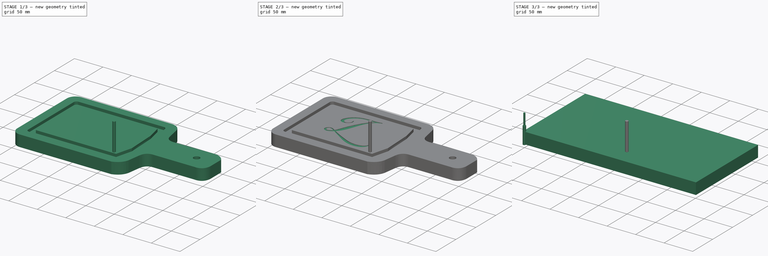
[diagram: build sequence overview — one tinted view per stage of 3, left to right]
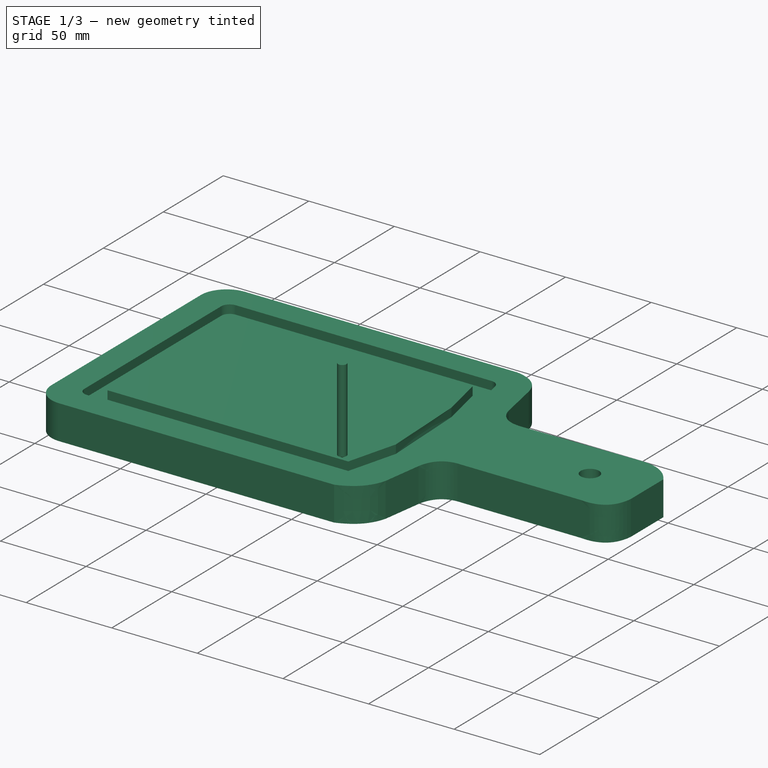
[diagram: stage 1 of 3 — iso view after this stage's code; geometry added in this stage tinted green]
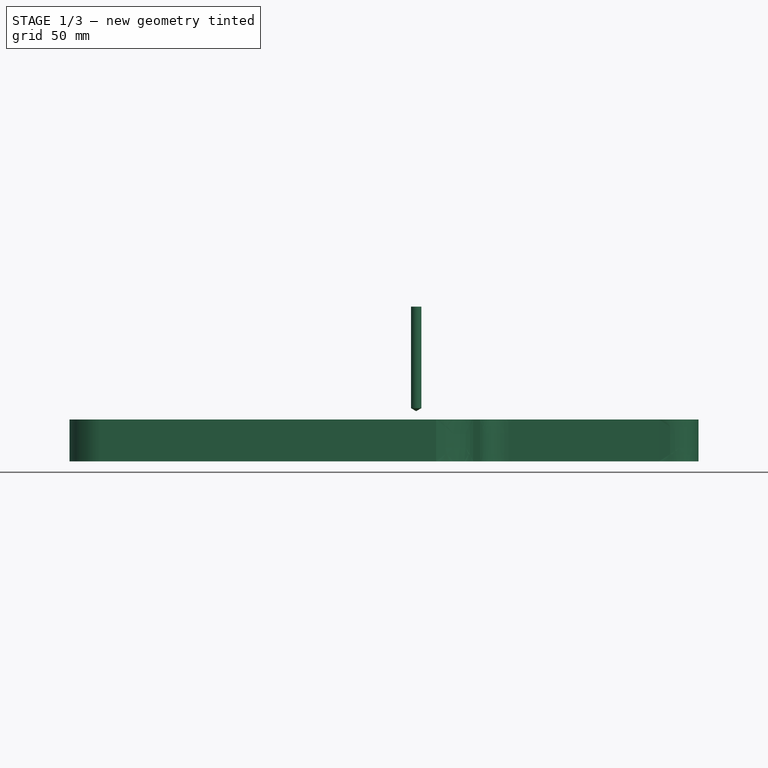
[diagram: stage 1 of 3 — front view after this stage's code; geometry added in this stage tinted green]
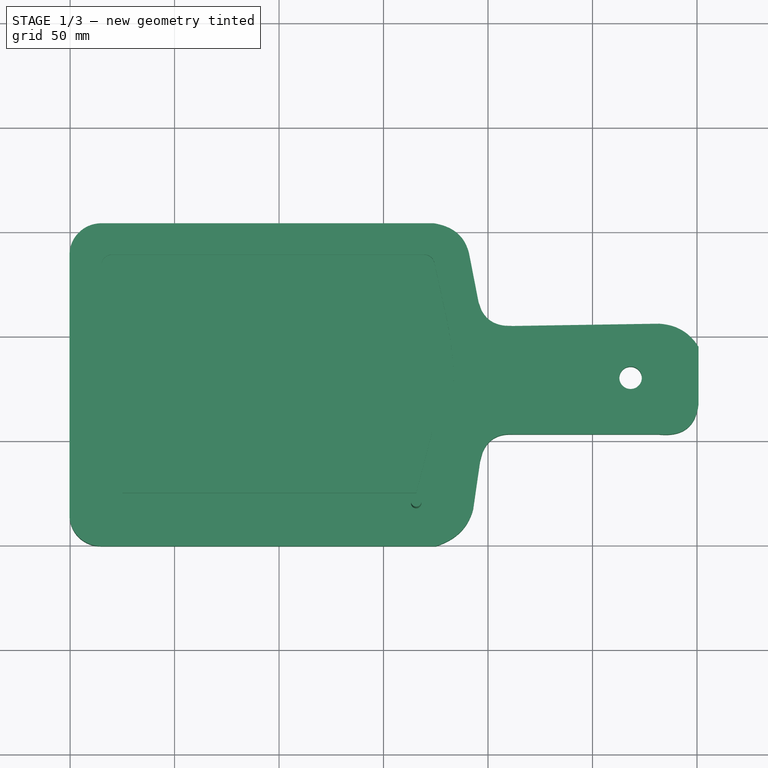
[diagram: stage 1 of 3 — top view after this stage's code; geometry added in this stage tinted green]
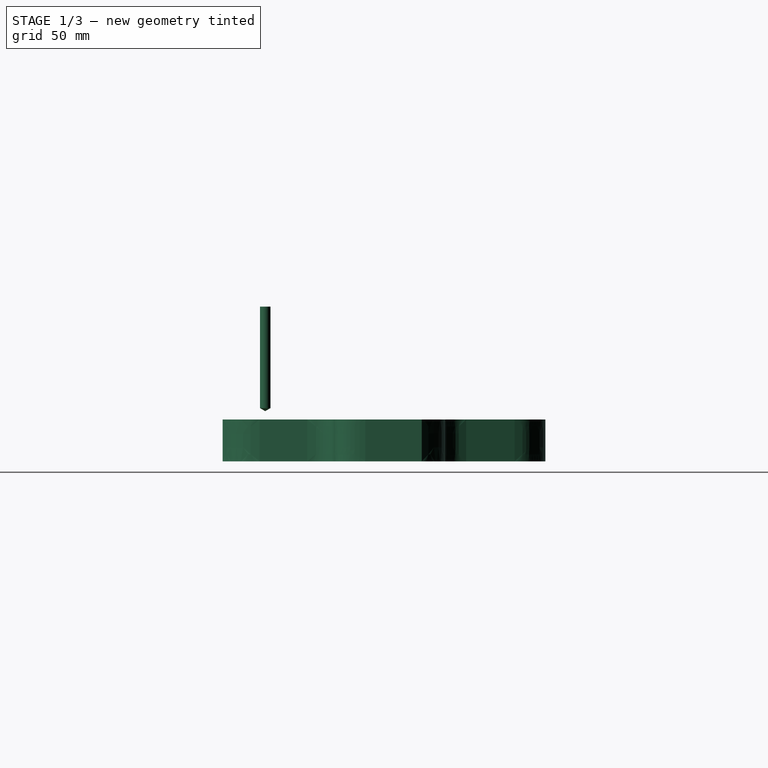
[diagram: stage 1 of 3 — right view after this stage's code; geometry added in this stage tinted green]
FCSTD DOCUMENT  (FreeCAD 1.0R39109 (Git))
Label: plateau
License: All rights reserved
LicenseURL: http://en.wikipedia.org/wiki/All_rights_reserved
objects: Part::FeaturePython×5, Path::FeaturePython×5, App::DocumentObjectGroup×3, Sketcher::SketchObject×2, PartDesign::Pocket×2, PartDesign::Pad×1, Part::Part2DObjectPython×1, PartDesign::Body×1, App::FeaturePython×1
note: 22 computed .brp shape members not serialized (recipe doc carries the construction recipe); baked Part::Feature solids carry a one-line shape summary decoded from their .brp

FEATURE [Sketcher::SketchObject] Sketch
  ArcFitTolerance = 1e-06
  AttachmentSupport = -> [XY_Plane]
  FullyConstrained = false
  MakeInternals = false
  MapMode = 5
  sketch-geometry (53):
    g0: Circle CenterX=268.232 CenterY=80.1327 CenterZ=0 NormalX=0 NormalY=0 NormalZ=1 AngleXU=0 Radius=5.38034
    g1: LineSegment StartX=174.162 StartY=154.059 StartZ=0 EndX=14.902 EndY=154.059 EndZ=0
    g2: ArcOfCircle CenterX=14.902 CenterY=138.853 CenterZ=0 NormalX=0 NormalY=0 NormalZ=1 AngleXU=0 Radius=15.2068 StartAngle=1.5708 EndAngle=3.14159
    g3: LineSegment StartX=-0.30477 StartY=138.853 StartZ=0 EndX=-0.304769 EndY=14.453 EndZ=0
    g4: ArcOfCircle CenterX=14.5404 CenterY=14.453 CenterZ=0 NormalX=0 NormalY=0 NormalZ=1 AngleXU=0 Radius=14.8452 StartAngle=3.14159 EndAngle=4.71239
    g5: LineSegment StartX=14.5404 StartY=-0.392192 StartZ=0 EndX=175.162 EndY=-0.392192 EndZ=0
    g6: BSplineCurve PolesCount=4 KnotsCount=2 Degree=3 IsPeriodic=0
    g7: LineSegment StartX=190.988 StartY=139.355 StartZ=0 EndX=195.514 EndY=116.132 EndZ=0
    g8: BSplineCurve PolesCount=4 KnotsCount=2 Degree=3 IsPeriodic=0
    g9: LineSegment StartX=211.782 StartY=104.905 StartZ=0 EndX=281.822 EndY=106.005 EndZ=0
    g10: BSplineCurve PolesCount=4 KnotsCount=2 Degree=3 IsPeriodic=0
    g11: LineSegment StartX=300.754 StartY=67.8428 StartZ=0 EndX=300.754 EndY=94.9199 EndZ=0
    g12: BSplineCurve PolesCount=4 KnotsCount=2 Degree=3 IsPeriodic=0
    g13: LineSegment StartX=211.782 StartY=53.1072 StartZ=0 EndX=281.822 EndY=53.1072 EndZ=0
    g14: BSplineCurve PolesCount=4 KnotsCount=2 Degree=3 IsPeriodic=0
    g15: LineSegment StartX=196.19 StartY=40.1089 StartZ=0 EndX=192.89 EndY=17.3027 EndZ=0
    g16: BSplineCurve PolesCount=4 KnotsCount=2 Degree=3 IsPeriodic=0
    g17: GeomPoint [constr] X=174.162 Y=154.059 Z=0
    g18: GeomPoint [constr] X=190.988 Y=139.355 Z=0
    g19-g22: Circle [constr] x4 (B-spline internal-alignment scaffolding for g6; pole/knot coordinates omitted)
    g23: GeomPoint [constr] X=195.514 Y=116.132 Z=0
    g24: GeomPoint [constr] X=211.782 Y=104.905 Z=0
    g25-g28: Circle [constr] x4 (B-spline internal-alignment scaffolding for g8; pole/knot coordinates omitted)
    g29: GeomPoint [constr] X=281.822 Y=106.005 Z=0
    g30: GeomPoint [constr] X=300.754 Y=94.9199 Z=0
    g31-g34: Circle [constr] x4 (B-spline internal-alignment scaffolding for g10; pole/knot coordinates omitted)
    g35: GeomPoint [constr] X=281.822 Y=53.1072 Z=0
    g36: GeomPoint [constr] X=300.754 Y=67.8428 Z=0
    g37-g40: Circle [constr] x4 (B-spline internal-alignment scaffolding for g12; pole/knot coordinates omitted)
    g41: GeomPoint [constr] X=211.782 Y=53.1072 Z=0
    g42: GeomPoint [constr] X=196.19 Y=40.1089 Z=0
    g43-g46: Circle [constr] x4 (B-spline internal-alignment scaffolding for g14; pole/knot coordinates omitted)
    g47: GeomPoint [constr] X=175.162 Y=-0.392192 Z=0
    g48: GeomPoint [constr] X=192.89 Y=17.3027 Z=0
    g49-g52: Circle [constr] x4 (B-spline internal-alignment scaffolding for g16; pole/knot coordinates omitted)
  constraints (81):
    c: Parallel(g5,g1)
    c: Tangent(g1,g2) = -1.5708
    c: Tangent(g3,g2) = -1.5708
    c: Tangent(g3,g4) = -1.5708
    c: Tangent(g5,g4) = -1.5708
    c: InternalAlignment(g17,g6)
    c: InternalAlignment(g18,g6)
    c: InternalAlignment(g19,g6)
    c: Weight(g19) = 1
    c: InternalAlignment(g20,g6)
    c: Equal(g20,g19)
    c: InternalAlignment(g21,g6)
    c: Equal(g21,g19)
    c: InternalAlignment(g22,g6)
    c: Equal(g22,g19)
    c: Coincident(g17,g1)
    c: Coincident(g18,g7)
    c: InternalAlignment(g23,g8)
    c: InternalAlignment(g24,g8)
    c: InternalAlignment(g25,g8)
    c: Weight(g25) = 1
    c: InternalAlignment(g26,g8)
    c: Equal(g26,g25)
    c: InternalAlignment(g27,g8)
    c: Equal(g27,g25)
    c: InternalAlignment(g28,g8)
    c: Equal(g28,g25)
    c: Coincident(g23,g7)
    c: Coincident(g24,g9)
    c: Parallel(g3,g11)
    c: Parallel(g5,g13)
    c: InternalAlignment(g29,g10)
    c: InternalAlignment(g30,g10)
    c: InternalAlignment(g31,g10)
    c: Weight(g31) = 1
    c: InternalAlignment(g32,g10)
    c: Equal(g32,g31)
    c: InternalAlignment(g33,g10)
    c: Equal(g33,g31)
    c: InternalAlignment(g34,g10)
    c: Equal(g34,g31)
    c: Coincident(g29,g9)
    c: Coincident(g30,g11)
    c: InternalAlignment(g35,g12)
    c: InternalAlignment(g36,g12)
    c: InternalAlignment(g37,g12)
    c: Weight(g37) = 1
    c: InternalAlignment(g38,g12)
    c: Equal(g38,g37)
    c: InternalAlignment(g39,g12)
    c: Equal(g39,g37)
    c: InternalAlignment(g40,g12)
    c: Equal(g40,g37)
    c: Coincident(g35,g13)
    c: Coincident(g36,g11)
    c: InternalAlignment(g41,g14)
    c: InternalAlignment(g42,g14)
    c: InternalAlignment(g43,g14)
    c: Weight(g43) = 1
    c: InternalAlignment(g44,g14)
    c: Equal(g44,g43)
    c: InternalAlignment(g45,g14)
    c: Equal(g45,g43)
    c: InternalAlignment(g46,g14)
    c: Equal(g46,g43)
    c: Coincident(g41,g13)
    c: Coincident(g42,g15)
    c: InternalAlignment(g47,g16)
    c: InternalAlignment(g48,g16)
    c: InternalAlignment(g49,g16)
    c: Weight(g49) = 1
    c: InternalAlignment(g50,g16)
    c: Equal(g50,g49)
    c: InternalAlignment(g51,g16)
    c: Equal(g51,g49)
    c: InternalAlignment(g52,g16)
    c: Equal(g52,g49)
    c: Coincident(g47,g5)
    c: Coincident(g48,g15)
    c: Distance(g1,g1) = 159.26
    c: Perpendicular(g3,g5)
FEATURE [PartDesign::Pad] Pad
  Direction = (0,0,1)
  Length = 20
  Length2 = 10
  Profile = -> Sketch
  ReferenceAxis = -> Sketch [N_Axis]
  Suppressed = false
  Type = 0
FEATURE [Sketcher::SketchObject] Sketch001
  ArcFitTolerance = 1e-06
  AttachmentOffset = pos=(0,0,20) rot=(0,0,1;0rad)
  AttachmentSupport = -> [XY_Plane]
  ExternalGeometry = -> [Sketch]
  FullyConstrained = false
  MakeInternals = false
  MapMode = 5
  Placement = pos=(0,0,20) rot=(0,0,1;0rad)
  sketch-geometry (32):
    g0: LineSegment [constr] StartX=-106.864 StartY=79.68 StartZ=0 EndX=387.094 EndY=79.68 EndZ=0
    g1: GeomPoint [constr] X=180.063 Y=79.68 Z=0
    g2: LineSegment StartX=165.454 StartY=129.059 StartZ=0 EndX=171.098 EndY=103.21 EndZ=0
    g3: LineSegment StartX=165.454 StartY=129.059 StartZ=0 EndX=25 EndY=129.059 EndZ=0
    g4: LineSegment StartX=25 StartY=129.059 StartZ=0 EndX=25 EndY=25 EndZ=0
    g5: LineSegment StartX=25 StartY=25 StartZ=0 EndX=165.622 EndY=25 EndZ=0
    g6: LineSegment StartX=165.622 StartY=25 StartZ=0 EndX=173.196 EndY=53.909 EndZ=0
    g7: LineSegment StartX=174.317 StartY=18.7325 StartZ=0 EndX=182.87 EndY=51.3708 EndZ=0
    g8: ArcOfCircle CenterX=169.48 CenterY=20 CenterZ=0 NormalX=0 NormalY=0 NormalZ=-1 AngleXU=1.82718 Radius=4.99989 StartAngle=1.57071 EndAngle=2.88521
    g9: LineSegment StartX=20 StartY=15 StartZ=0 EndX=169.48 EndY=15.0001 EndZ=0
    g10: ArcOfCircle CenterX=20 CenterY=20 CenterZ=0 NormalX=0 NormalY=0 NormalZ=-1 AngleXU=-3.14159 Radius=5 StartAngle=1.5708 EndAngle=3.14159
    g11: LineSegment StartX=15 StartY=134.059 StartZ=0 EndX=15 EndY=20 EndZ=0
    g12: ArcOfCircle CenterX=20 CenterY=134.059 CenterZ=0 NormalX=0 NormalY=0 NormalZ=-1 AngleXU=-1.5708 Radius=5 StartAngle=1.5708 EndAngle=3.14159
    g13: LineSegment StartX=169.48 StartY=139.059 StartZ=0 EndX=20 EndY=139.059 EndZ=0
    g14: ArcOfCircle CenterX=169.48 CenterY=134.059 CenterZ=0 NormalX=0 NormalY=0 NormalZ=-1 AngleXU=0 Radius=5.00009 StartAngle=1.5708 EndAngle=2.92653
    g15: LineSegment StartX=174.365 StartY=135.126 StartZ=0 EndX=180.868 EndY=105.355 EndZ=0
    g16: GeomPoint [constr] X=180.868 Y=105.355 Z=0
    g17: GeomPoint [constr] X=183.66 Y=79.68 Z=0
    g18: GeomPoint [constr] X=182.87 Y=51.3708 Z=0
    g19: BSplineCurve PolesCount=4 KnotsCount=2 Degree=3 IsPeriodic=0
    g20-g23: Circle [constr] x4 (B-spline internal-alignment scaffolding for g19; pole/knot coordinates omitted)
    g24: GeomPoint [constr] X=171.098 Y=103.21 Z=0
    g25: GeomPoint [constr] X=171.925 Y=79.68 Z=0
    g26: GeomPoint [constr] X=173.196 Y=53.909 Z=0
    g27: BSplineCurve PolesCount=4 KnotsCount=2 Degree=3 IsPeriodic=0
    g28-g31: Circle [constr] x4 (B-spline internal-alignment scaffolding for g27; pole/knot coordinates omitted)
  constraints (43):
    c: Horizontal(g0)
    c: Distance(g0,g-1) = 79.68
    c: PointOnObject(g1,g0)
    c: Coincident(g2,g3)
    c: Coincident(g3,g4)
    c: Coincident(g4,g5)
    c: Coincident(g5,g6)
    c: Tangent(g7,g8) = -1.5708
    c: Tangent(g8,g9) = -1.5708
    c: Tangent(g9,g10) = -1.5708
    c: Tangent(g10,g11) = -1.5708
    c: Tangent(g11,g12) = -1.5708
    c: Tangent(g12,g13) = -1.5708
    c: Tangent(g13,g14) = -1.5708
    c: Tangent(g14,g15) = 1.5708
    c: InternalAlignment(g16,g19)
    c: PointOnObject(g17,g19)
    c: InternalAlignment(g18,g19)
    c: InternalAlignment(g20,g19)
    c: Weight(g20) = 1
    c: InternalAlignment(g21,g19)
    c: Equal(g21,g20)
    c: InternalAlignment(g22,g19)
    c: Equal(g22,g20)
    c: InternalAlignment(g23,g19)
    c: Equal(g23,g20)
    c: Coincident(g16,g15)
    c: PointOnObject(g17,g0)
    c: Coincident(g18,g7)
    c: InternalAlignment(g24,g27)
    c: PointOnObject(g25,g27)
    c: InternalAlignment(g26,g27)
    c: InternalAlignment(g28,g27)
    c: Weight(g28) = 1
    c: InternalAlignment(g29,g27)
    c: Equal(g29,g28)
    c: InternalAlignment(g30,g27)
    c: Equal(g30,g28)
    c: InternalAlignment(g31,g27)
    c: Equal(g31,g28)
    c: Coincident(g24,g2)
    c: PointOnObject(g25,g0)
    c: Coincident(g26,g6)
FEATURE [PartDesign::Pocket] Pocket
  BaseFeature = -> Pad
  Direction = (0,0,-1)
  Length = 5
  Length2 = 5
  Profile = -> Sketch001
  ReferenceAxis = -> Sketch001 [N_Axis]
  Suppressed = false
  Type = 0
FEATURE [Part::FeaturePython] ToolBit002  label="5mm Drill002"  # Path/CAM toolbit (typed FeaturePython)
  BitPropertyNames = Chipload | Diameter | Flutes | Length | Material | TipAngle
  BitShape = <path>
  Chipload = 0
  Diameter = 5
  Flutes = 0
  Length = 50
  Material = 0
  Placement = pos=(165.623,20.0001,24) rot=(0,0,1;0rad)
  ShapeName = drill
  TipAngle = 119
FEATURE [Path::FeaturePython] _mm_Drill  label="0.8mm Drill001"  # Path/CAM operation (typed FeaturePython)
  HorizFeed = 33.3333
  HorizRapid = 16.6667
  SpindleDir = 0
  SpindleSpeed = 5000
  Tool = -> ToolBit002
  ToolNumber = 2
  VertFeed = 33.3333
  VertRapid = 16.6667
  expr: HorizRapid = SetupSheet.HorizRapid
  expr: VertRapid = SetupSheet.VertRapid
FEATURE [App::DocumentObjectGroup] Tools
  Group = -> [TC__Default_Tool,_mm_Drill]
FEATURE [Path::FeaturePython] Pocket_Shape  # Path/CAM operation (typed FeaturePython)
  Active = true
  AreaParams:
    Tolerance = 1e-07
    FitArcs = True
    Simplify = False
    CleanDistance = 0.0
    Accuracy = 0.01
    Unit = 1.0
    MinArcPoints = 4
    MaxArcPoints = 100
    ClipperScale = 10000000.0
    Fill = 0
    Coplanar = 0
    Reorient = True
    Outline = False
    Explode = False
    OpenMode = 0
    Deflection = 0.01
    SubjectFill = 0
    ClipFill = 0
    Offset = 0.0
    ExtraPass = 0
    Stepover = 0.0
    LastStepover = 0.0
    JoinType = 0
    EndType = 0
    MiterLimit = 2.0
    RoundPrecision = 0.0
    PocketMode = 2
    ToolRadius = 2.5
    PocketExtraOffset = 0.0
    PocketStepover = 5.0
    PocketLastStepover = 0.0
    FromCenter = True
    Angle = 45.0
    AngleShift = 0.0
    Shift = 0.0
    Thicken = False
    SectionCount = -1
    Stepdown = 1.0
    SectionOffset = 0.0
    SectionTolerance = 1e-06
    SectionMode = 2
    Project = False
  Base = -> [Clone]
  ClearanceHeight = 26
  CoolantMode = 0
  CutMode = 0
  CycleTime = 00:02:17
  ExtensionCorners = true
  ExtensionLengthDefault = 2.5
  ExtraOffset = 0
  FinalDepth = 15
  FinishDepth = 0
  KeepToolDown = false
  MinTravel = false
  OffsetPattern = 1
  OpFinalDepth = 15
  OpStartDepth = 21
  OpStockZMax = 21
  OpStockZMin = 1
  OpToolDiameter = 5
  PathParams = {'orientation': 1, 'feedrate': 33.333333333333336, 'feedrate_v': 33.333333333333336, 'verbose': True, 'resume_height': 24.0, 'retraction': 26.0, 'return_end': True, 'preamble': False, 'sort_mode': 0, 'start': Vector (0.0, 0.0, 0.0)}
  PocketLastStepOver = 0
  SafeHeight = 24
  SplitArcs = false
  StartAt = 0
  StartDepth = 21
  StartPoint = (0,0,0)
  StepDown = 5
  StepOver = 100
  ToolController = -> _mm_Drill
  UseOutline = false
  UseRestMachining = false
  UseStartPoint = true
  ZigZagAngle = 45
  expr: ClearanceHeight = OpStockZMax + SetupSheet.ClearanceHeightOffset
  expr: ExtensionLengthDefault = OpToolDiameter / 2
  expr: FinalDepth = OpFinalDepth
  expr: SafeHeight = OpStockZMax + SetupSheet.SafeHeightOffset
  expr: StartDepth = OpStartDepth
  expr: StepDown = OpToolDiameter
FEATURE [Path::FeaturePython] Pocket3D  # Path/CAM operation (typed FeaturePython)
  Active = true
  AdaptivePocketFinish = false
  AdaptivePocketStart = false
  AreaParams:
    Tolerance = 1e-07
    FitArcs = True
    Simplify = False
    CleanDistance = 0.0
    Accuracy = 0.01
    Unit = 1.0
    MinArcPoints = 4
    MaxArcPoints = 100
    ClipperScale = 10000000.0
    Fill = 0
    Coplanar = 0
    Reorient = True
    Outline = False
    Explode = False
    OpenMode = 0
    Deflection = 0.01
    SubjectFill = 0
    ClipFill = 0
    Offset = 0.0
    ExtraPass = 0
    Stepover = 0.0
    LastStepover = 0.0
    JoinType = 0
    EndType = 0
    MiterLimit = 2.0
    RoundPrecision = 0.0
    PocketMode = 2
    ToolRadius = 2.5
    PocketExtraOffset = 0.0
    PocketStepover = 5.0
    PocketLastStepover = 0.0
    FromCenter = True
    Angle = 45.0
    AngleShift = 0.0
    Shift = 0.0
    Thicken = False
    SectionCount = -1
    Stepdown = 1.0
    SectionOffset = 0.0
    SectionTolerance = 1e-06
    SectionMode = 2
    Project = False
  Base = -> [Clone]
  ClearanceHeight = 26
  CoolantMode = 0
  CutMode = 1
  CycleTime = 00:01:48
  ExtraOffset = 0
  FinalDepth = 0
  FinishDepth = 5
  HandleMultipleFeatures = 0
  KeepToolDown = false
  MinTravel = false
  OffsetPattern = 1
  OpFinalDepth = 0
  OpStartDepth = 21
  OpStockZMax = 21
  OpStockZMin = 1
  OpToolDiameter = 5
  PathParams:
    orientation = 0
    feedrate = 33.333333333333336
    feedrate_v = 33.333333333333336
    verbose = True
    resume_height = 24.0
    retraction = 26.0
    return_end = True
    preamble = False
    sort_mode = 0
  PocketLastStepOver = 0
  ProcessStockArea = false
  SafeHeight = 24
  SplitArcs = false
  StartAt = 0
  StartDepth = 21
  StartPoint = (0,0,0)
  StepDown = 5
  StepOver = 100
  ToolController = -> _mm_Drill
  UseRestMachining = false
  UseStartPoint = false
  ZigZagAngle = 45
  expr: ClearanceHeight = OpStockZMax + SetupSheet.ClearanceHeightOffset
  expr: FinalDepth = OpFinalDepth
  expr: OpFinalDepth = 0 mm
  expr: SafeHeight = OpStockZMax + SetupSheet.SafeHeightOffset
  expr: StartDepth = OpStartDepth
  expr: StepDown = OpToolDiameter
FEATURE [App::DocumentObjectGroup] Operations
  Group = -> [Pocket_Shape,Pocket3D]
FEATURE [Path::FeaturePython] Job  # Path/CAM operation (typed FeaturePython)
  CycleTime = 00:04:05
  Fixtures = G54
  GeometryTolerance = 0
  JobType = 0
  Model = -> Model
  Operations = -> Operations
  OrderOutputBy = 0
  PostProcessor = 11
  SetupSheet = -> SetupSheet
  SplitOutput = false
  Stock = -> Stock
  Tools = -> Tools
note: 4 file-system paths scrubbed to <path> (originals preserved in the JSON sidecar)
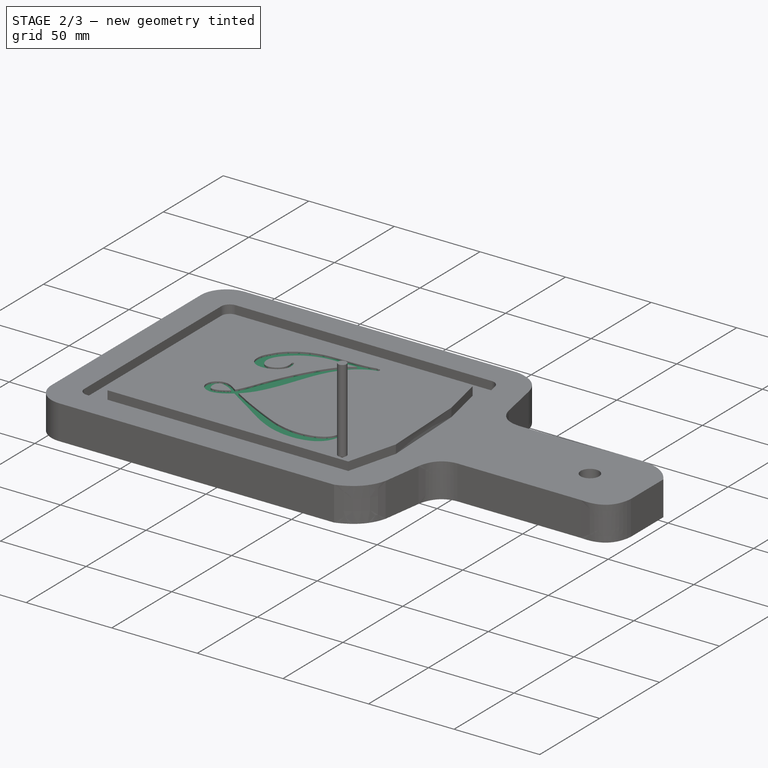
[diagram: stage 2 of 3 — iso view after this stage's code; geometry added in this stage tinted green]
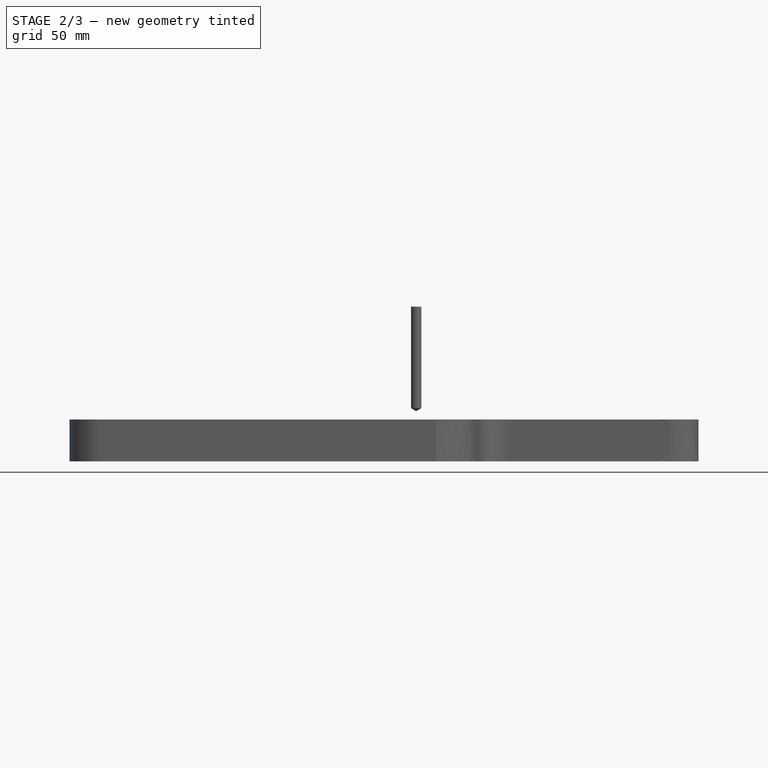
[diagram: stage 2 of 3 — front view after this stage's code; geometry added in this stage tinted green]
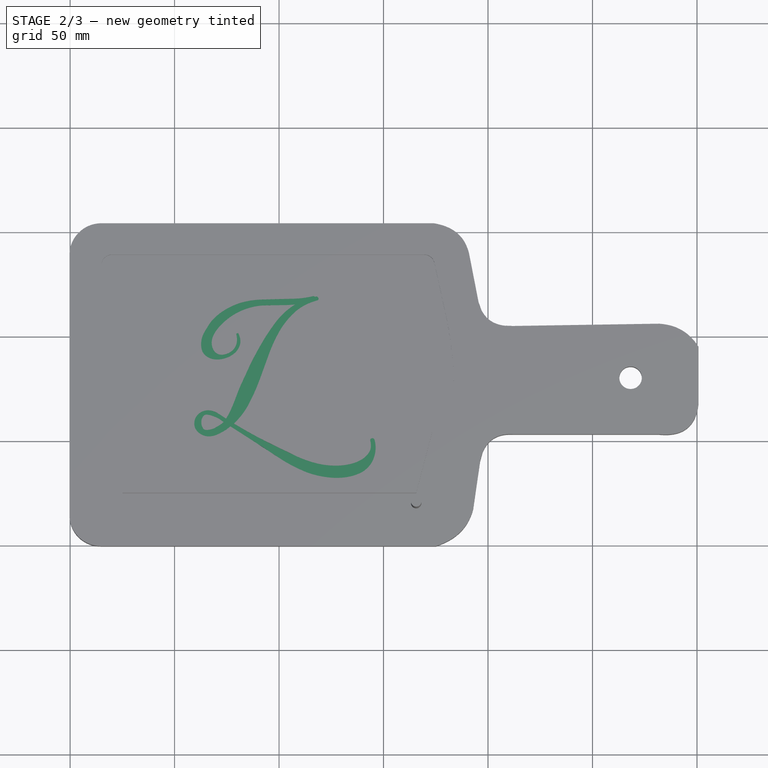
[diagram: stage 2 of 3 — top view after this stage's code; geometry added in this stage tinted green]
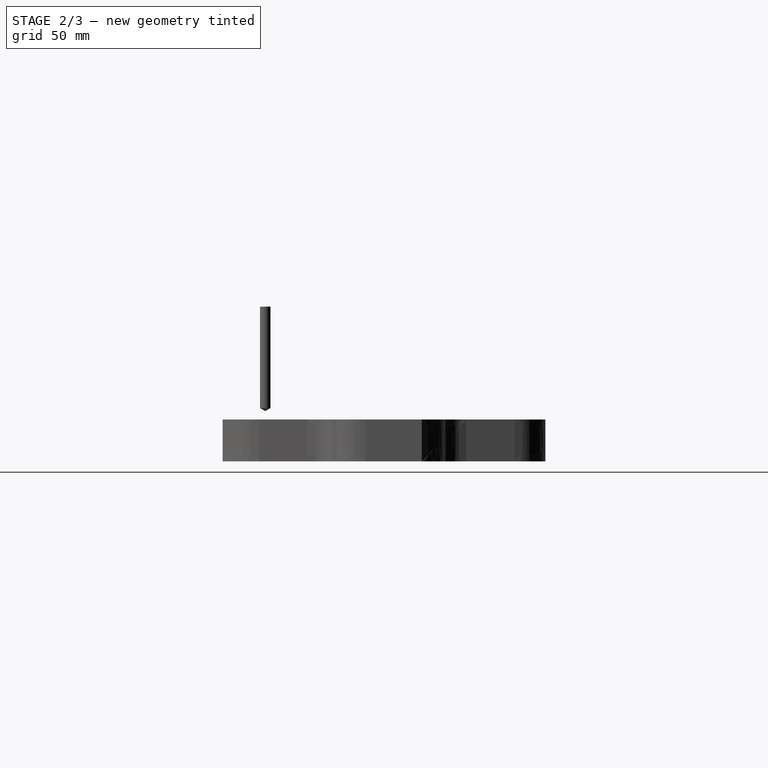
[diagram: stage 2 of 3 — right view after this stage's code; geometry added in this stage tinted green]
FEATURE [Part::Part2DObjectPython] ShapeString  # Draft 2D object (typed FeaturePython)
  FontFile = <path> Rainbow Script FREE.ttf
  Fuse = false
  Justification = 6
  JustificationReference = 0
  KeepLeftMargin = true
  MakeFace = true
  ObliqueAngle = 0
  Placement = pos=(57.7,57.7,20) rot=(0,0,1;0rad)
  ScaleToSize = false
  Size = 30
  String = L
  Tracking = 0
FEATURE [PartDesign::Pocket] Pocket001
  BaseFeature = -> Pocket
  Direction = (0,0,-1)
  Length = 1
  Length2 = 5
  Profile = -> ShapeString
  ReferenceAxis = -> ShapeString [N_Axis]
  Suppressed = false
  Type = 0
FEATURE [PartDesign::Body] Body
  AllowCompound = false
  Group = -> [Sketch,Pad,Sketch001,Pocket,ShapeString,Pocket001]
  Origin = -> Origin
  Tip = -> Pocket001
FEATURE [App::FeaturePython] SetupSheet  # Path/CAM operation (typed FeaturePython)
  ClearanceHeightExpression = OpStockZMax+SetupSheet.ClearanceHeightOffset
  ClearanceHeightOffset = 5
  CoolantMode = 0
  CoolantModes = None | Flood | Mist
  FinalDepthExpression = OpFinalDepth
  HorizRapid = 16.6667
  SafeHeightExpression = OpStockZMax+SetupSheet.SafeHeightOffset
  SafeHeightOffset = 3
  StartDepthExpression = OpStartDepth
  StepDownExpression = OpToolDiameter
  VertRapid = 16.6667
FEATURE [Part::FeaturePython] Clone  label="Model-Body"  # Draft clone (typed FeaturePython)
  AttacherType = Attacher::AttachEngine3D
  Fuse = false
  Objects = -> [Body]
  PathResource = Model
  Scale = (1,1,1)
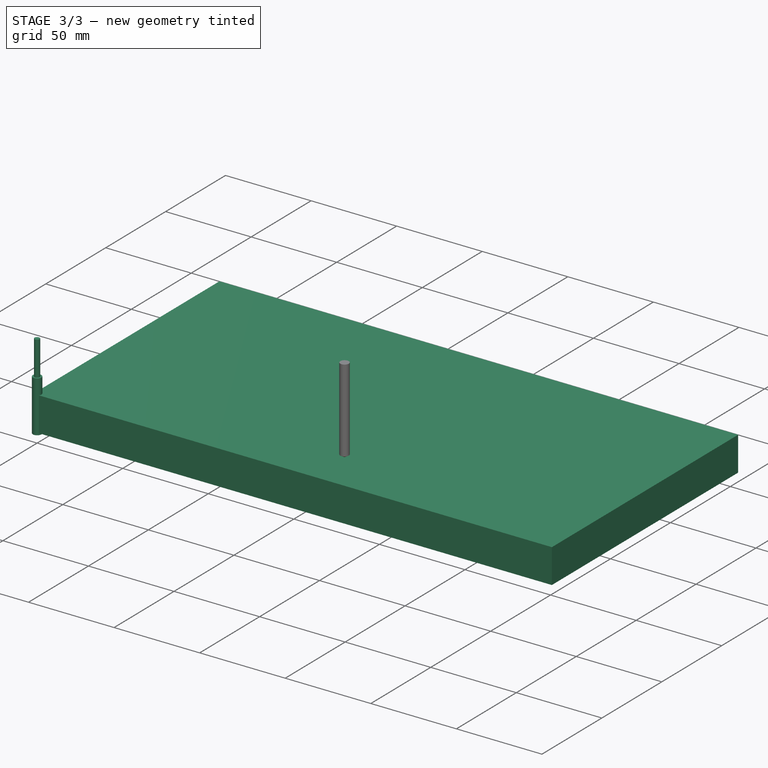
[diagram: stage 3 of 3 — iso view after this stage's code; geometry added in this stage tinted green]
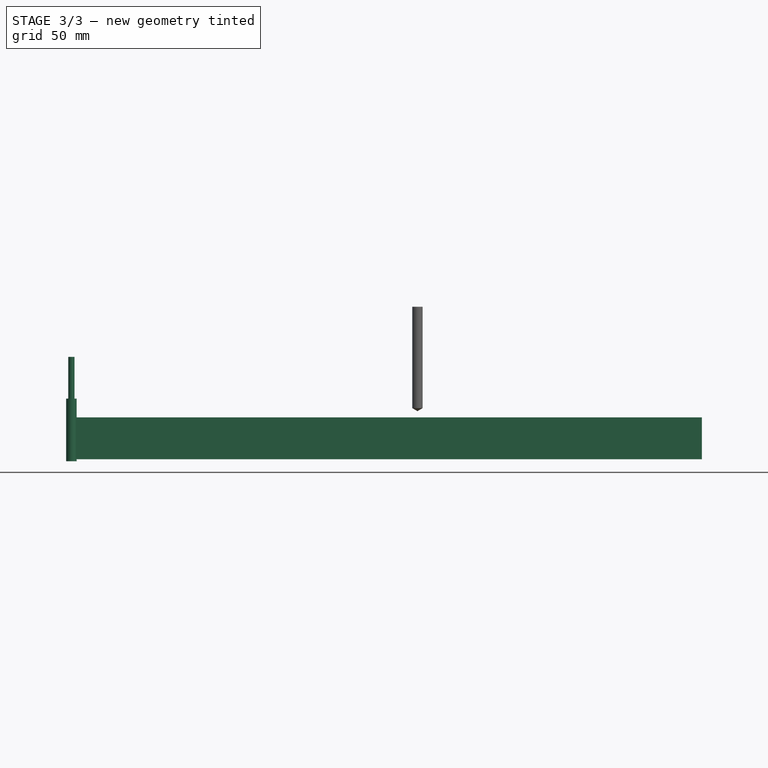
[diagram: stage 3 of 3 — front view after this stage's code; geometry added in this stage tinted green]
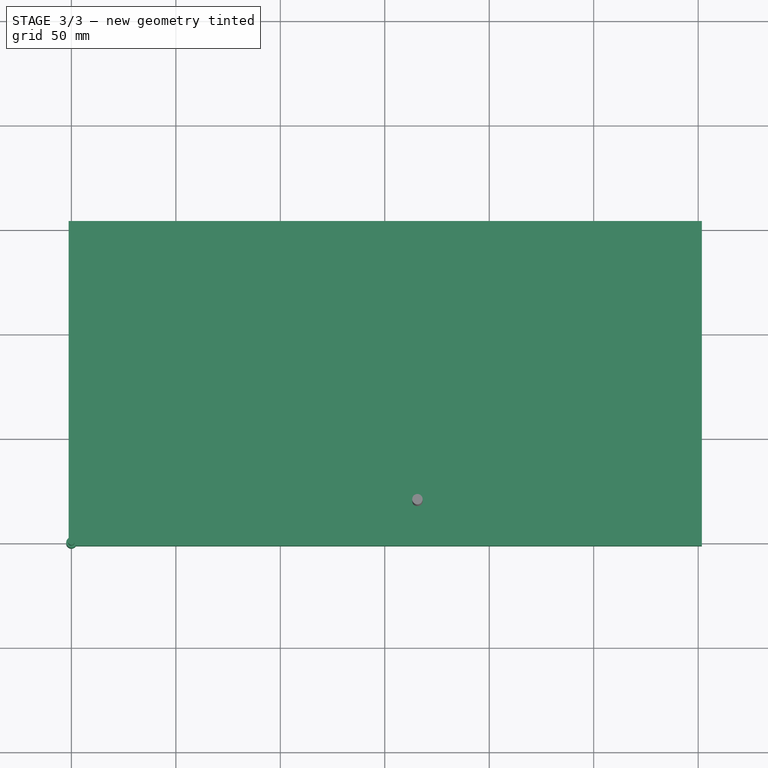
[diagram: stage 3 of 3 — top view after this stage's code; geometry added in this stage tinted green]
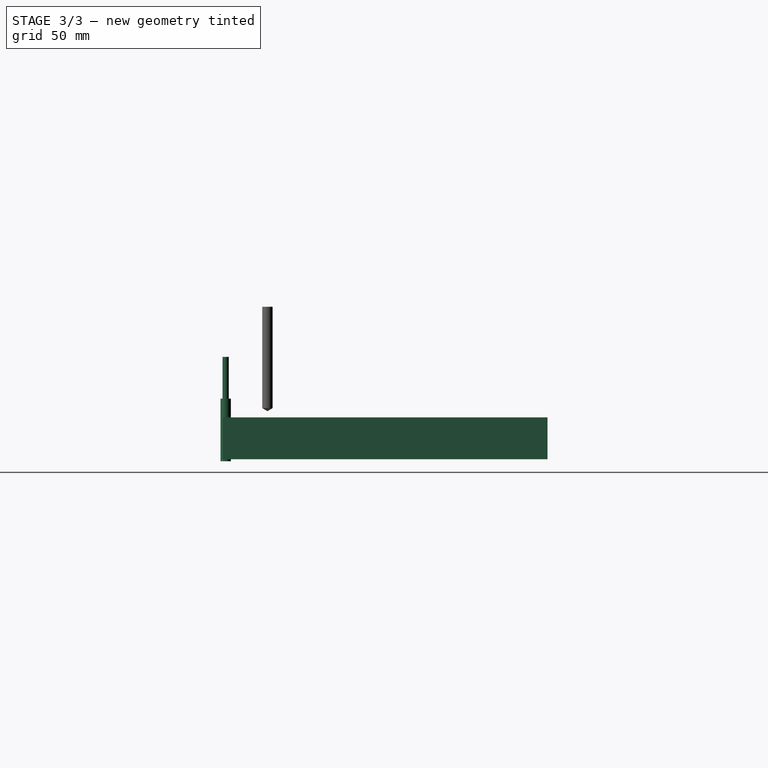
[diagram: stage 3 of 3 — right view after this stage's code; geometry added in this stage tinted green]
FEATURE [App::DocumentObjectGroup] Model
  Group = -> [Clone]
FEATURE [Part::FeaturePython] ToolBit  label="Endmill"  # Path/CAM toolbit (typed FeaturePython)
  BitPropertyNames = Chipload | CuttingEdgeHeight | Diameter | Flutes | Length | Material | ShankDiameter | SpindleDirection
  BitShape = <path>
  Chipload = 0
  CuttingEdgeHeight = 30
  Diameter = 5
  Flutes = 0
  Length = 50
  Material = 0
  ShankDiameter = 3
  ShapeName = endmill
  SpindleDirection = 0
FEATURE [Path::FeaturePython] TC__Default_Tool  label="TC: Default Tool"  # Path/CAM operation (typed FeaturePython)
  HorizFeed = 0
  HorizRapid = 16.6667
  SpindleDir = 0
  SpindleSpeed = 0
  Tool = -> ToolBit
  ToolNumber = 1
  VertFeed = 0
  VertRapid = 16.6667
  expr: HorizRapid = SetupSheet.HorizRapid
  expr: VertRapid = SetupSheet.VertRapid
FEATURE [Part::FeaturePython] Stock  # WARN: FeaturePython — macro-defined, semantics opaque (R4)
  Base = -> Model
  ExtXneg = 1
  ExtXpos = 1
  ExtYneg = 1
  ExtYpos = 0
  ExtZneg = -1
  ExtZpos = 1
  Placement = pos=(-0.30477,-0.392192,0) rot=(0,0,1;0rad)
  StockType = FromBase
FEATURE [Part::FeaturePython] ToolBit001  label="0.8mm Drill"  # Path/CAM toolbit (typed FeaturePython)
  BitPropertyNames = Chipload | Diameter | Flutes | Length | Material | TipAngle
  BitShape = <path>
  Chipload = 0
  Diameter = 0.8
  File = <userpath>/AppData/Roaming/FreeCAD/Macro/Bit/5mm_Drill.fctb
  Flutes = 0
  Length = 45
  Material = 0
  ShapeName = drill
  TipAngle = 119
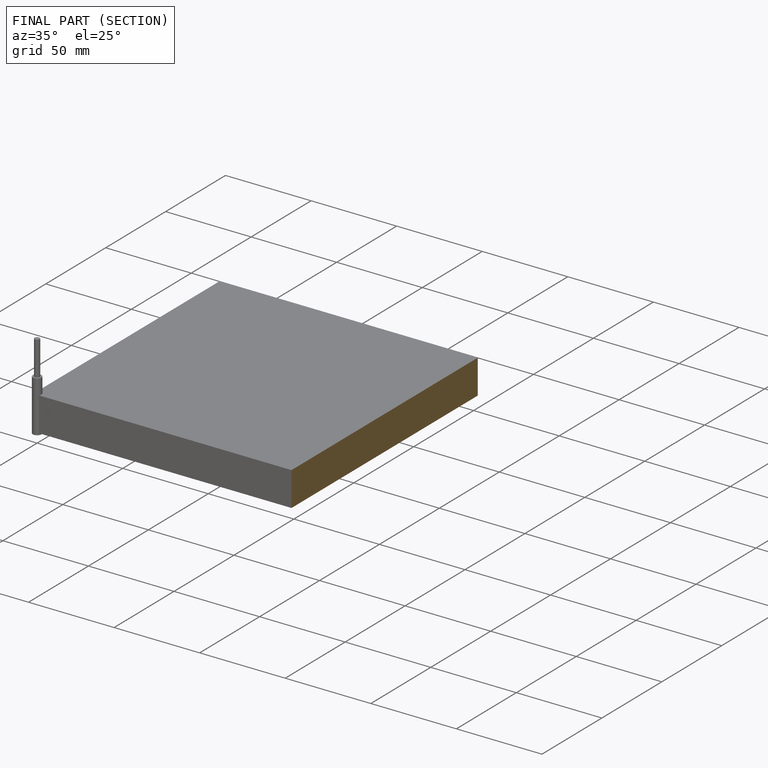
[diagram: finished part — half-section view (interior)]
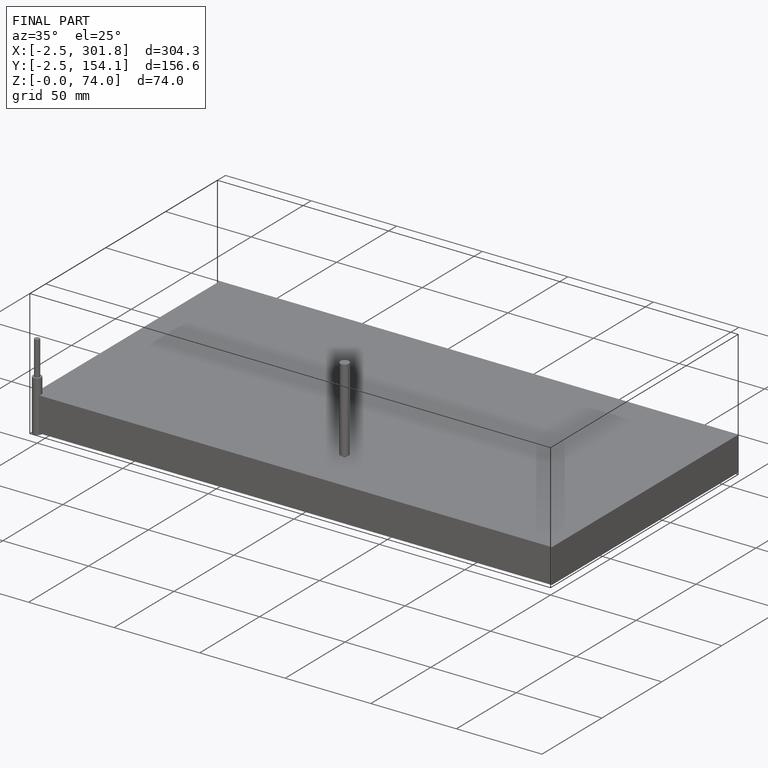
[diagram: finished part — iso view with bounding-box wireframe]
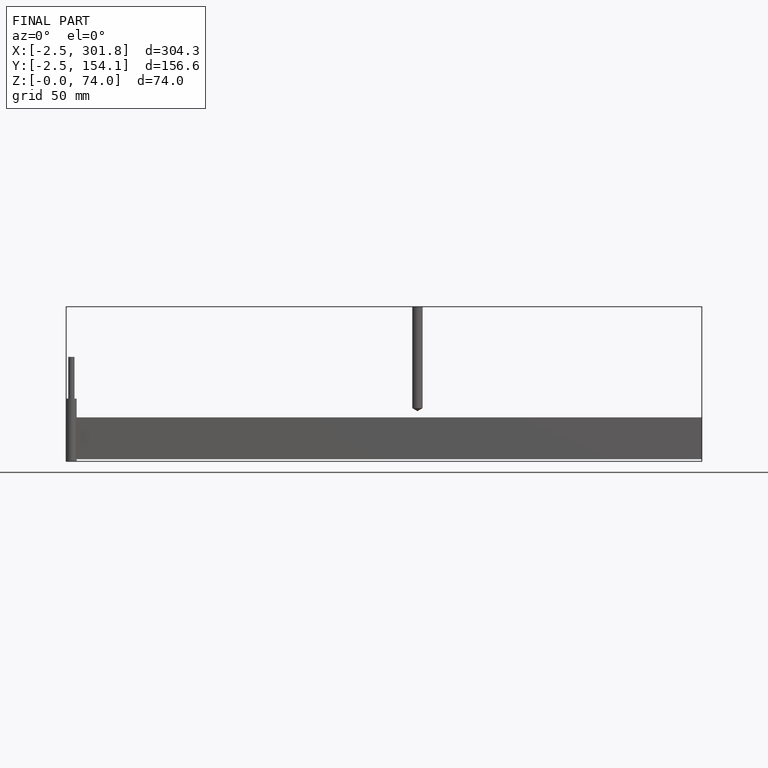
[diagram: finished part — front view with bounding-box wireframe]
